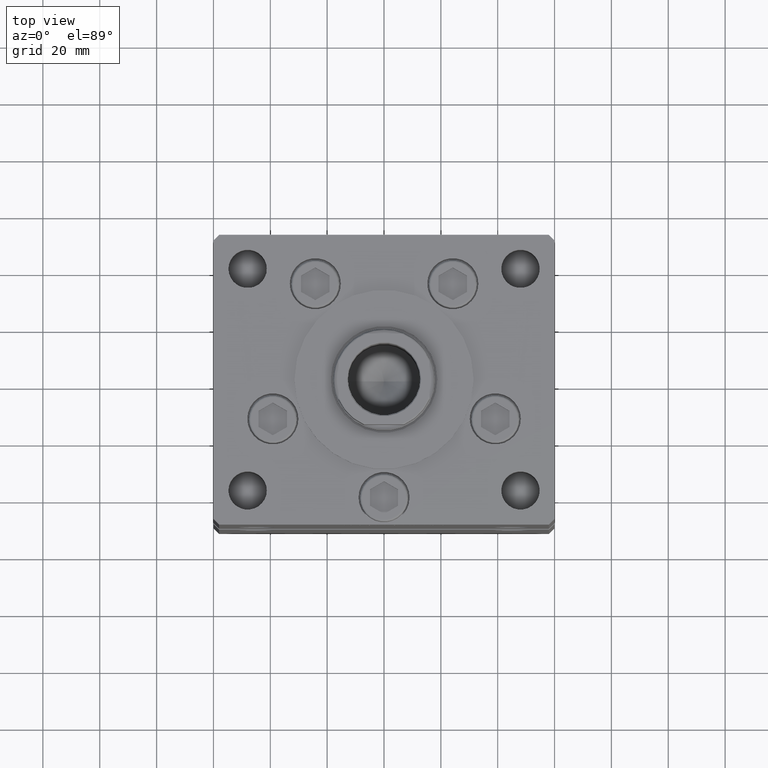
[diagram: clean part render]
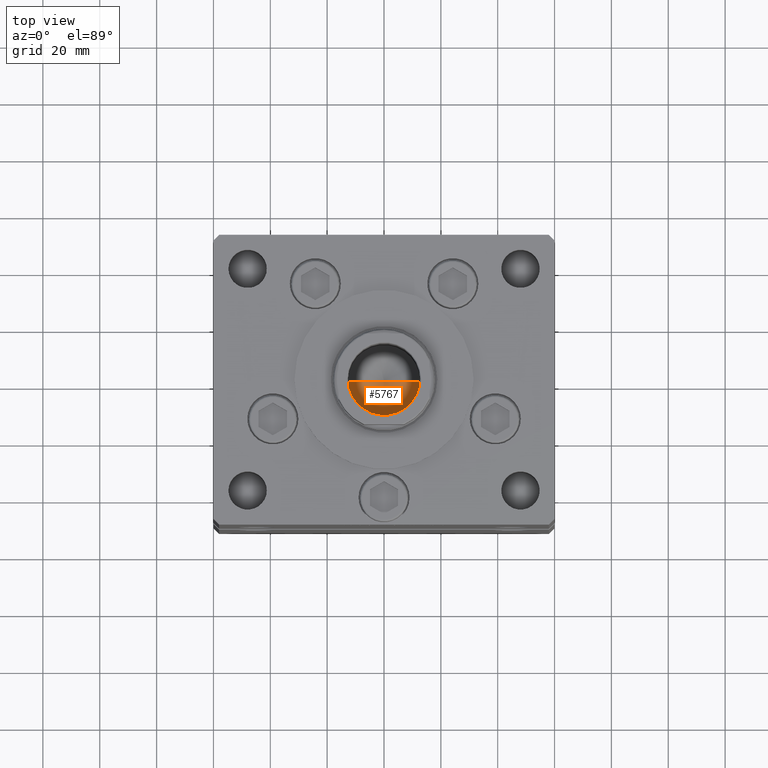
[diagram: same view with one face highlighted and labeled with its STEP entity id]
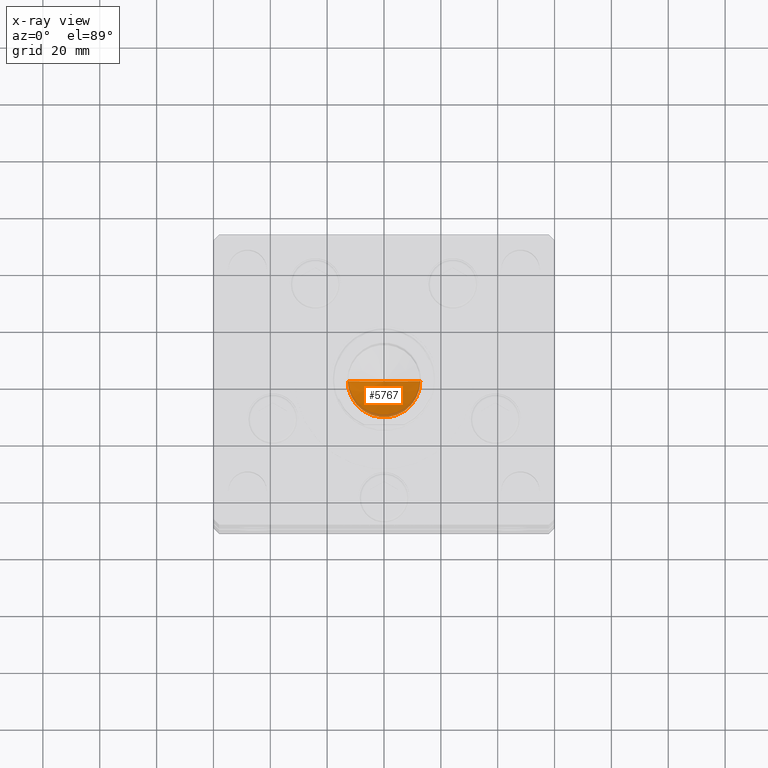
[diagram: x-ray of the same camera — body ghosted, the highlighted face saturated]
A machine part, top view. The second image highlights one B-rep face of the part: STEP entity #5767.
The next image is the same camera in x-ray: the body ghosted, the highlighted face saturated — about 8% of this face is hidden behind the body in this view.
In plain terms, the highlighted conical surface has half-angle 59 deg.
Its self-contained STEP definition (entity closure, byte-faithful):
#1008 = DIRECTION ( 'NONE',  ( -0.8571673007021117785, 1.049727191138617956E-16, 0.5150380749100550437 ) ) ;
#1976 = CONICAL_SURFACE ( 'NONE', #32002, 12.74999999999999112, 1.029744258676653423 ) ;
#5767 = ADVANCED_FACE ( 'NONE', ( #38431 ), #1976, .F. ) ;
#6070 = EDGE_CURVE ( 'NONE', #20397, #29832, #40946, .T. ) ;
#7113 = AXIS2_PLACEMENT_3D ( 'NONE', #18196, #35351, #18462 ) ;
#7849 = CARTESIAN_POINT ( 'NONE',  ( -1.307202896762960287E-14, 0.000000000000000000, 116.5890271073986213 ) ) ;
#8882 = VECTOR ( 'NONE', #32627, 1000.000000000000000 ) ;
#8938 = EDGE_CURVE ( 'NONE', #38517, #29832, #38066, .T. ) ;
#9061 = LINE ( 'NONE', #34019, #25414 ) ;
#14011 = DIRECTION ( 'NONE',  ( -0.000000000000000000, -0.000000000000000000, 1.000000000000000000 ) ) ;
#18045 = CARTESIAN_POINT ( 'NONE',  ( 0.000000000000000000, 0.000000000000000000, 124.2500000000000142 ) ) ;
#18079 = ORIENTED_EDGE ( 'NONE', *, *, #6070, .F. ) ;
#18196 = CARTESIAN_POINT ( 'NONE',  ( 0.000000000000000000, 0.000000000000000000, 124.2500000000000142 ) ) ;
#18462 = DIRECTION ( 'NONE',  ( 1.000000000000000000, 0.000000000000000000, 0.000000000000000000 ) ) ;
#18569 = DIRECTION ( 'NONE',  ( 1.000000000000000000, 0.000000000000000000, 0.000000000000000000 ) ) ;
#20397 = VERTEX_POINT ( 'NONE', #7849 ) ;
#20699 = CARTESIAN_POINT ( 'NONE',  ( 12.74999999999999112, 0.000000000000000000, 124.2500000000000142 ) ) ;
#23030 = ORIENTED_EDGE ( 'NONE', *, *, #45656, .T. ) ;
#25293 = CARTESIAN_POINT ( 'NONE',  ( -12.74999999999999112, 1.561424668912874125E-15, 124.2500000000000142 ) ) ;
#25414 = VECTOR ( 'NONE', #1008, 1000.000000000000000 ) ;
#29832 = VERTEX_POINT ( 'NONE', #20699 ) ;
#31612 = EDGE_LOOP ( 'NONE', ( #18079, #23030, #48274 ) ) ;
#32002 = AXIS2_PLACEMENT_3D ( 'NONE', #18045, #14011, #18569 ) ;
#32627 = DIRECTION ( 'NONE',  ( 0.8571673007021117785, 0.000000000000000000, 0.5150380749100550437 ) ) ;
#34019 = CARTESIAN_POINT ( 'NONE',  ( -12.74999999999999112, 1.561424668912874125E-15, 124.2500000000000142 ) ) ;
#35351 = DIRECTION ( 'NONE',  ( -0.000000000000000000, -0.000000000000000000, 1.000000000000000000 ) ) ;
#38066 = CIRCLE ( 'NONE', #7113, 12.74999999999999112 ) ;
#38431 = FACE_OUTER_BOUND ( 'NONE', #31612, .T. ) ;
#38517 = VERTEX_POINT ( 'NONE', #25293 ) ;
#40946 = LINE ( 'NONE', #41202, #8882 ) ;
#41202 = CARTESIAN_POINT ( 'NONE',  ( 12.74999999999999112, 0.000000000000000000, 124.2500000000000142 ) ) ;
#45656 = EDGE_CURVE ( 'NONE', #20397, #38517, #9061, .T. ) ;
#48274 = ORIENTED_EDGE ( 'NONE', *, *, #8938, .T. ) ;